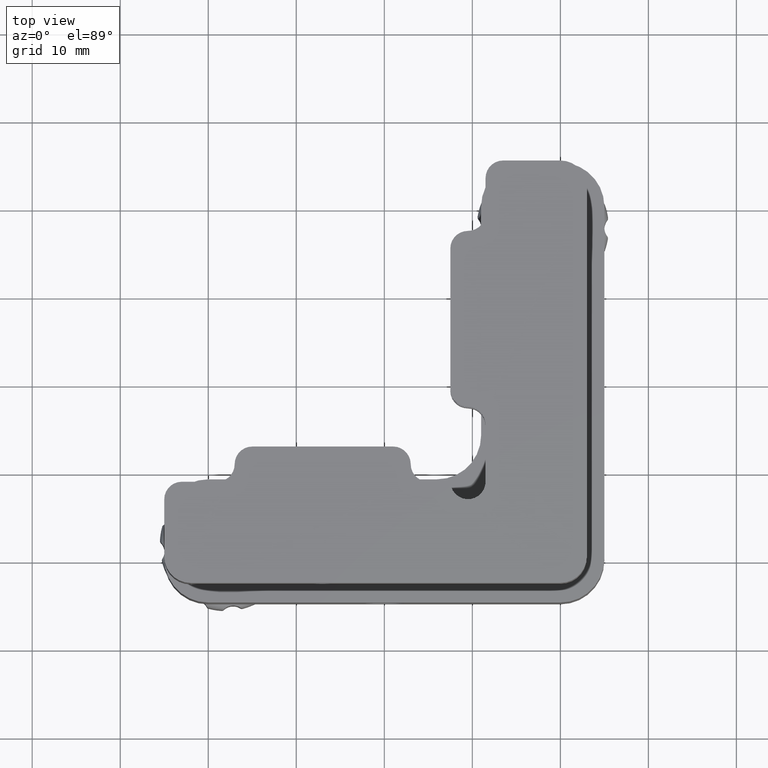
[diagram: clean part render]
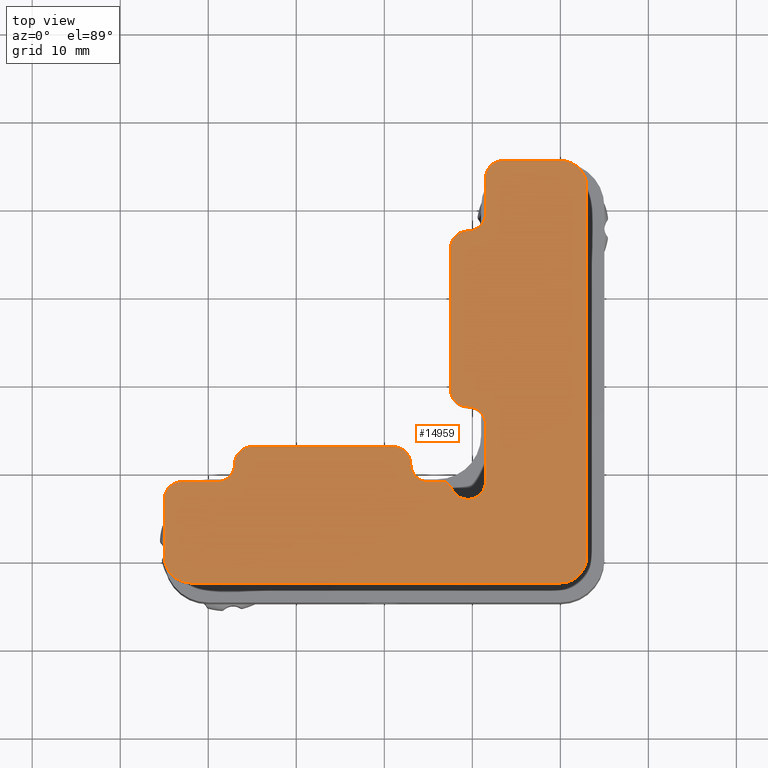
[diagram: same view with one face highlighted and labeled with its STEP entity id]
A machine part, top view. The second image highlights one B-rep face of the part: STEP entity #14959.
In plain terms, the highlighted planar face has unit normal (-0, 0, -1).
Its self-contained STEP definition (entity closure, byte-faithful):
#101 = EDGE_CURVE ( 'NONE', #2942, #16243, #3482, .T. ) ;
#159 = VERTEX_POINT ( 'NONE', #864 ) ;
#206 = DIRECTION ( 'NONE',  ( 0.000000000000000000, -1.000000000000000000, 0.000000000000000000 ) ) ;
#209 = DIRECTION ( 'NONE',  ( 0.000000000000000000, 0.000000000000000000, -1.000000000000000000 ) ) ;
#234 = CARTESIAN_POINT ( 'NONE',  ( -21.99999999999999645, 22.00000000000000711, 10.00000000000000000 ) ) ;
#340 = DIRECTION ( 'NONE',  ( 0.000000000000000000, 0.000000000000000000, -1.000000000000000000 ) ) ;
#347 = CARTESIAN_POINT ( 'NONE',  ( 23.00000000000000000, 22.00000000000000000, 10.00000000000000000 ) ) ;
#433 = DIRECTION ( 'NONE',  ( 0.000000000000000000, 0.000000000000000000, -1.000000000000000000 ) ) ;
#454 = VERTEX_POINT ( 'NONE', #5663 ) ;
#521 = CARTESIAN_POINT ( 'NONE',  ( -19.00000000000000711, -9.499999999999989342, 10.00000000000000000 ) ) ;
#538 = CARTESIAN_POINT ( 'NONE',  ( 7.588562172233864089, -12.08856217223386409, 10.00000000000000178 ) ) ;
#563 = DIRECTION ( 'NONE',  ( 0.000000000000000000, -1.000000000000000000, 0.000000000000000000 ) ) ;
#784 = EDGE_CURVE ( 'NONE', #16913, #3377, #9316, .T. ) ;
#828 = DIRECTION ( 'NONE',  ( -0.000000000000000000, -0.000000000000000000, 1.000000000000000000 ) ) ;
#864 = CARTESIAN_POINT ( 'NONE',  ( 23.00000000000000000, 22.00000000000000000, 10.00000000000000000 ) ) ;
#1080 = CIRCLE ( 'NONE', #8924, 2.000000000000000000 ) ;
#1246 = CARTESIAN_POINT ( 'NONE',  ( 19.99999999999999289, -23.00000000000000000, 10.00000000000000000 ) ) ;
#1298 = ORIENTED_EDGE ( 'NONE', *, *, #7707, .F. ) ;
#1455 = CARTESIAN_POINT ( 'NONE',  ( 20.00000000000000355, 22.00000000000000000, 10.00000000000000000 ) ) ;
#1491 = CARTESIAN_POINT ( 'NONE',  ( 6.999999999999995559, -11.49999999999999467, 10.00000000000000000 ) ) ;
#1507 = EDGE_CURVE ( 'NONE', #2146, #16913, #4094, .T. ) ;
#1552 = FACE_OUTER_BOUND ( 'NONE', #15891, .T. ) ;
#1553 = EDGE_CURVE ( 'NONE', #15966, #2146, #14475, .T. ) ;
#1633 = VERTEX_POINT ( 'NONE', #15735 ) ;
#1683 = AXIS2_PLACEMENT_3D ( 'NONE', #15241, #209, #13907 ) ;
#1788 = VERTEX_POINT ( 'NONE', #11671 ) ;
#1854 = CARTESIAN_POINT ( 'NONE',  ( 0.9999999999999978906, -9.499999999999996447, 10.00000000000000000 ) ) ;
#2146 = VERTEX_POINT ( 'NONE', #2415 ) ;
#2154 = VECTOR ( 'NONE', #5506, 1000.000000000000000 ) ;
#2166 = AXIS2_PLACEMENT_3D ( 'NONE', #5822, #828, #563 ) ;
#2169 = VECTOR ( 'NONE', #3923, 1000.000000000000000 ) ;
#2399 = CARTESIAN_POINT ( 'NONE',  ( -25.00000000000000711, -13.49999999999997513, 10.00000000000000000 ) ) ;
#2415 = CARTESIAN_POINT ( 'NONE',  ( 2.999999999999997780, -9.499999999999996447, 10.00000000000000000 ) ) ;
#2491 = CARTESIAN_POINT ( 'NONE',  ( 7.499999999999996447, -0.9999999999999956701, 10.00000000000000000 ) ) ;
#2659 = CARTESIAN_POINT ( 'NONE',  ( -19.00000000000000711, -11.49999999999999289, 10.00000000000000000 ) ) ;
#2676 = CARTESIAN_POINT ( 'NONE',  ( 22.99999999999998934, -20.00000000000000355, 10.00000000000000000 ) ) ;
#2713 = ORIENTED_EDGE ( 'NONE', *, *, #11229, .T. ) ;
#2854 = CARTESIAN_POINT ( 'NONE',  ( 1.000000000000000000, -7.499999999999995559, 10.00000000000000000 ) ) ;
#2918 = DIRECTION ( 'NONE',  ( 0.000000000000000000, -1.000000000000000000, 0.000000000000000000 ) ) ;
#2942 = VERTEX_POINT ( 'NONE', #538 ) ;
#2985 = CARTESIAN_POINT ( 'NONE',  ( 4.999999999999998224, -9.499999999999996447, 10.00000000000000000 ) ) ;
#3024 = AXIS2_PLACEMENT_3D ( 'NONE', #12725, #7428, #4722 ) ;
#3071 = AXIS2_PLACEMENT_3D ( 'NONE', #4909, #9208, #11853 ) ;
#3304 = CIRCLE ( 'NONE', #13411, 2.999999999999995559 ) ;
#3305 = ORIENTED_EDGE ( 'NONE', *, *, #13263, .F. ) ;
#3350 = CIRCLE ( 'NONE', #1683, 2.000000000000000000 ) ;
#3377 = VERTEX_POINT ( 'NONE', #13180 ) ;
#3458 = ORIENTED_EDGE ( 'NONE', *, *, #3969, .T. ) ;
#3482 = LINE ( 'NONE', #3569, #15651 ) ;
#3569 = CARTESIAN_POINT ( 'NONE',  ( 6.999999999999998224, -11.49999999999999645, 10.00000000000000000 ) ) ;
#3646 = EDGE_CURVE ( 'NONE', #454, #159, #14491, .T. ) ;
#3702 = VECTOR ( 'NONE', #10370, 1000.000000000000000 ) ;
#3729 = CIRCLE ( 'NONE', #10452, 1.999999999999998224 ) ;
#3800 = CARTESIAN_POINT ( 'NONE',  ( 5.499999999999994671, -7.499999999999997335, 10.00000000000000000 ) ) ;
#3803 = ORIENTED_EDGE ( 'NONE', *, *, #101, .T. ) ;
#3819 = CARTESIAN_POINT ( 'NONE',  ( -22.00000000000001066, -19.99999999999999645, 10.00000000000000000 ) ) ;
#3823 = DIRECTION ( 'NONE',  ( 0.000000000000000000, -1.000000000000000000, 0.000000000000000000 ) ) ;
#3875 = ORIENTED_EDGE ( 'NONE', *, *, #10333, .F. ) ;
#3923 = DIRECTION ( 'NONE',  ( -1.000000000000000000, 2.220446049250312834E-16, 0.000000000000000000 ) ) ;
#3942 = LINE ( 'NONE', #15994, #2154 ) ;
#3969 = EDGE_CURVE ( 'NONE', #14398, #15684, #11981, .T. ) ;
#4045 = VERTEX_POINT ( 'NONE', #5803 ) ;
#4090 = CARTESIAN_POINT ( 'NONE',  ( 11.49999999999999467, -2.553512956637858465E-15, 10.00000000000000000 ) ) ;
#4094 = CIRCLE ( 'NONE', #9701, 2.000000000000000000 ) ;
#4127 = DIRECTION ( 'NONE',  ( -2.220446049250312834E-16, -1.000000000000000000, 0.000000000000000000 ) ) ;
#4184 = LINE ( 'NONE', #15974, #2169 ) ;
#4422 = DIRECTION ( 'NONE',  ( 1.000000000000000000, -3.046504847334506466E-16, 0.000000000000000000 ) ) ;
#4550 = DIRECTION ( 'NONE',  ( 0.000000000000000000, -1.000000000000000000, 0.000000000000000000 ) ) ;
#4633 = EDGE_CURVE ( 'NONE', #3377, #16104, #15937, .T. ) ;
#4722 = DIRECTION ( 'NONE',  ( 0.000000000000000000, -1.000000000000000000, 0.000000000000000000 ) ) ;
#4909 = CARTESIAN_POINT ( 'NONE',  ( 9.499999999999996447, -11.49999999999999645, 10.00000000000000178 ) ) ;
#4980 = AXIS2_PLACEMENT_3D ( 'NONE', #8427, #8163, #16544 ) ;
#5001 = VECTOR ( 'NONE', #8170, 1000.000000000000000 ) ;
#5062 = VERTEX_POINT ( 'NONE', #12782 ) ;
#5069 = CARTESIAN_POINT ( 'NONE',  ( -22.00000000000001066, -22.99999999999999645, 10.00000000000000000 ) ) ;
#5161 = ORIENTED_EDGE ( 'NONE', *, *, #14515, .T. ) ;
#5186 = ORIENTED_EDGE ( 'NONE', *, *, #4633, .T. ) ;
#5256 = ORIENTED_EDGE ( 'NONE', *, *, #15438, .F. ) ;
#5506 = DIRECTION ( 'NONE',  ( -2.220446049250312834E-16, -1.000000000000000000, 0.000000000000000000 ) ) ;
#5521 = VERTEX_POINT ( 'NONE', #12596 ) ;
#5523 = LINE ( 'NONE', #347, #12044 ) ;
#5587 = EDGE_CURVE ( 'NONE', #4045, #14274, #8869, .T. ) ;
#5663 = CARTESIAN_POINT ( 'NONE',  ( 20.00000000000000711, 24.99999999999999289, 10.00000000000000000 ) ) ;
#5754 = VERTEX_POINT ( 'NONE', #6578 ) ;
#5788 = DIRECTION ( 'NONE',  ( -4.336808689942017736E-16, -1.000000000000000000, 0.000000000000000000 ) ) ;
#5803 = CARTESIAN_POINT ( 'NONE',  ( -23.00000000000000711, -11.49999999999998757, 10.00000000000000000 ) ) ;
#5822 = CARTESIAN_POINT ( 'NONE',  ( -23.00000000000000711, -13.49999999999998757, 10.00000000000000000 ) ) ;
#5998 = ORIENTED_EDGE ( 'NONE', *, *, #16061, .F. ) ;
#6017 = VERTEX_POINT ( 'NONE', #16177 ) ;
#6407 = CARTESIAN_POINT ( 'NONE',  ( 11.49999999999999112, -5.047177953354517086E-15, 10.00000000000000000 ) ) ;
#6447 = CIRCLE ( 'NONE', #12055, 2.999999999999995559 ) ;
#6578 = CARTESIAN_POINT ( 'NONE',  ( 9.500000000000000000, 17.00000000000000000, 10.00000000000000000 ) ) ;
#6921 = DIRECTION ( 'NONE',  ( -2.168404344971008868E-16, -1.000000000000000000, 0.000000000000000000 ) ) ;
#6952 = CARTESIAN_POINT ( 'NONE',  ( 7.500000000000000000, 15.00000000000000711, 10.00000000000000000 ) ) ;
#6960 = CARTESIAN_POINT ( 'NONE',  ( 9.500000000000000000, 15.00000000000000355, 10.00000000000000000 ) ) ;
#7007 = EDGE_CURVE ( 'NONE', #4045, #11841, #8296, .T. ) ;
#7041 = DIRECTION ( 'NONE',  ( 0.000000000000000000, -1.000000000000000000, 0.000000000000000000 ) ) ;
#7178 = DIRECTION ( 'NONE',  ( -0.000000000000000000, -0.000000000000000000, 1.000000000000000000 ) ) ;
#7428 = DIRECTION ( 'NONE',  ( -0.000000000000000000, -0.000000000000000000, 1.000000000000000000 ) ) ;
#7592 = ORIENTED_EDGE ( 'NONE', *, *, #12285, .T. ) ;
#7693 = ORIENTED_EDGE ( 'NONE', *, *, #784, .T. ) ;
#7707 = EDGE_CURVE ( 'NONE', #5521, #1788, #11193, .T. ) ;
#7758 = AXIS2_PLACEMENT_3D ( 'NONE', #1455, #13486, #3823 ) ;
#7820 = VERTEX_POINT ( 'NONE', #5069 ) ;
#7948 = EDGE_CURVE ( 'NONE', #6017, #5062, #11908, .T. ) ;
#8127 = DIRECTION ( 'NONE',  ( 1.000000000000000000, -8.725659084163335741E-16, -0.000000000000000000 ) ) ;
#8163 = DIRECTION ( 'NONE',  ( -0.000000000000000000, -0.000000000000000000, 1.000000000000000000 ) ) ;
#8170 = DIRECTION ( 'NONE',  ( -1.000000000000000000, 3.357969640054776903E-16, 0.000000000000000000 ) ) ;
#8296 = LINE ( 'NONE', #12446, #16648 ) ;
#8321 = VECTOR ( 'NONE', #10631, 1000.000000000000000 ) ;
#8386 = DIRECTION ( 'NONE',  ( -0.000000000000000000, 0.000000000000000000, -1.000000000000000000 ) ) ;
#8427 = CARTESIAN_POINT ( 'NONE',  ( 9.499999999999996447, -1.000000000000003109, 10.00000000000000000 ) ) ;
#8869 = CIRCLE ( 'NONE', #2166, 2.000000000000000000 ) ;
#8924 = AXIS2_PLACEMENT_3D ( 'NONE', #521, #16178, #4550 ) ;
#8937 = VERTEX_POINT ( 'NONE', #12047 ) ;
#9208 = DIRECTION ( 'NONE',  ( 0.000000000000000000, 0.000000000000000000, 1.000000000000000000 ) ) ;
#9216 = CIRCLE ( 'NONE', #3071, 1.999999999999988010 ) ;
#9316 = LINE ( 'NONE', #3800, #5001 ) ;
#9403 = CARTESIAN_POINT ( 'NONE',  ( 19.99999999999999289, -20.00000000000000355, 10.00000000000000000 ) ) ;
#9426 = DIRECTION ( 'NONE',  ( 2.220446049250312588E-16, 1.000000000000000000, 0.000000000000000000 ) ) ;
#9577 = CARTESIAN_POINT ( 'NONE',  ( 13.50000000000000178, 22.99999999999999645, 10.00000000000000000 ) ) ;
#9701 = AXIS2_PLACEMENT_3D ( 'NONE', #1854, #7178, #6921 ) ;
#9731 = ORIENTED_EDGE ( 'NONE', *, *, #1553, .T. ) ;
#9756 = EDGE_CURVE ( 'NONE', #7820, #8937, #6447, .T. ) ;
#9860 = LINE ( 'NONE', #10922, #14560 ) ;
#10045 = ORIENTED_EDGE ( 'NONE', *, *, #16350, .T. ) ;
#10046 = AXIS2_PLACEMENT_3D ( 'NONE', #234, #8386, #13929 ) ;
#10333 = EDGE_CURVE ( 'NONE', #159, #10683, #5523, .T. ) ;
#10370 = DIRECTION ( 'NONE',  ( 4.388850394221322442E-16, 1.000000000000000000, 0.000000000000000000 ) ) ;
#10452 = AXIS2_PLACEMENT_3D ( 'NONE', #9577, #14960, #2918 ) ;
#10631 = DIRECTION ( 'NONE',  ( 3.046504847334506466E-16, 1.000000000000000000, 0.000000000000000000 ) ) ;
#10683 = VERTEX_POINT ( 'NONE', #2676 ) ;
#10733 = EDGE_CURVE ( 'NONE', #5754, #15513, #11951, .T. ) ;
#10897 = VECTOR ( 'NONE', #4422, 1000.000000000000000 ) ;
#10922 = CARTESIAN_POINT ( 'NONE',  ( 6.653865492777504512E-15, -11.50000000000000000, 10.00000000000000000 ) ) ;
#11193 = LINE ( 'NONE', #6407, #3702 ) ;
#11229 = EDGE_CURVE ( 'NONE', #1633, #1788, #3729, .T. ) ;
#11539 = ORIENTED_EDGE ( 'NONE', *, *, #7948, .F. ) ;
#11671 = CARTESIAN_POINT ( 'NONE',  ( 11.50000000000000178, 22.99999999999999645, 10.00000000000000000 ) ) ;
#11759 = AXIS2_PLACEMENT_3D ( 'NONE', #13694, #340, #16609 ) ;
#11841 = VERTEX_POINT ( 'NONE', #2659 ) ;
#11853 = DIRECTION ( 'NONE',  ( 0.000000000000000000, 1.000000000000000000, 0.000000000000000000 ) ) ;
#11864 = CARTESIAN_POINT ( 'NONE',  ( -24.99999999999999645, 22.00000000000001066, 10.00000000000000000 ) ) ;
#11908 = LINE ( 'NONE', #4090, #16914 ) ;
#11923 = ORIENTED_EDGE ( 'NONE', *, *, #3646, .F. ) ;
#11951 = CIRCLE ( 'NONE', #14202, 2.000000000000000000 ) ;
#11981 = CIRCLE ( 'NONE', #4980, 2.000000000000000000 ) ;
#12044 = VECTOR ( 'NONE', #4127, 1000.000000000000000 ) ;
#12047 = CARTESIAN_POINT ( 'NONE',  ( -25.00000000000000711, -19.99999999999999289, 10.00000000000000000 ) ) ;
#12055 = AXIS2_PLACEMENT_3D ( 'NONE', #3819, #14546, #16852 ) ;
#12285 = EDGE_CURVE ( 'NONE', #15513, #14398, #3942, .T. ) ;
#12415 = DIRECTION ( 'NONE',  ( 1.000000000000000000, 5.785969993719567940E-16, 0.000000000000000000 ) ) ;
#12437 = PLANE ( 'NONE',  #10046 ) ;
#12446 = CARTESIAN_POINT ( 'NONE',  ( -1.003450794678784222E-14, -11.50000000000000888, 10.00000000000000000 ) ) ;
#12596 = CARTESIAN_POINT ( 'NONE',  ( 11.49999999999999822, 19.00000000000000000, 10.00000000000000000 ) ) ;
#12666 = CARTESIAN_POINT ( 'NONE',  ( 4.999999999999997335, -11.49999999999999822, 10.00000000000000000 ) ) ;
#12725 = CARTESIAN_POINT ( 'NONE',  ( -15.00000000000000355, -9.499999999999991118, 10.00000000000000000 ) ) ;
#12782 = CARTESIAN_POINT ( 'NONE',  ( 11.49999999999999289, -5.000000000000001776, 10.00000000000000000 ) ) ;
#13008 = EDGE_CURVE ( 'NONE', #15789, #7820, #4184, .T. ) ;
#13075 = AXIS2_PLACEMENT_3D ( 'NONE', #2985, #433, #5788 ) ;
#13180 = CARTESIAN_POINT ( 'NONE',  ( -14.99999999999999645, -7.499999999999990230, 10.00000000000000000 ) ) ;
#13263 = EDGE_CURVE ( 'NONE', #8937, #14274, #17169, .T. ) ;
#13411 = AXIS2_PLACEMENT_3D ( 'NONE', #9403, #13815, #206 ) ;
#13486 = DIRECTION ( 'NONE',  ( 0.000000000000000000, 0.000000000000000000, -1.000000000000000000 ) ) ;
#13694 = CARTESIAN_POINT ( 'NONE',  ( 9.500000000000000000, 19.00000000000000000, 10.00000000000000000 ) ) ;
#13737 = LINE ( 'NONE', #13816, #10897 ) ;
#13743 = DIRECTION ( 'NONE',  ( -0.000000000000000000, -0.000000000000000000, 1.000000000000000000 ) ) ;
#13779 = ORIENTED_EDGE ( 'NONE', *, *, #1507, .T. ) ;
#13815 = DIRECTION ( 'NONE',  ( 0.000000000000000000, 0.000000000000000000, -1.000000000000000000 ) ) ;
#13816 = CARTESIAN_POINT ( 'NONE',  ( 20.00000000000000711, 24.99999999999999289, 10.00000000000000000 ) ) ;
#13877 = EDGE_CURVE ( 'NONE', #10683, #15789, #3304, .T. ) ;
#13907 = DIRECTION ( 'NONE',  ( 0.000000000000000000, -1.000000000000000000, 0.000000000000000000 ) ) ;
#13929 = DIRECTION ( 'NONE',  ( -2.220446049250312588E-16, -1.000000000000000000, 0.000000000000000000 ) ) ;
#14193 = DIRECTION ( 'NONE',  ( -0.7071067811865474617, 0.7071067811865476838, 0.000000000000000000 ) ) ;
#14202 = AXIS2_PLACEMENT_3D ( 'NONE', #6960, #13743, #7041 ) ;
#14274 = VERTEX_POINT ( 'NONE', #2399 ) ;
#14398 = VERTEX_POINT ( 'NONE', #2491 ) ;
#14422 = ORIENTED_EDGE ( 'NONE', *, *, #5587, .T. ) ;
#14475 = CIRCLE ( 'NONE', #13075, 2.000000000000000000 ) ;
#14491 = CIRCLE ( 'NONE', #7758, 2.999999999999995559 ) ;
#14515 = EDGE_CURVE ( 'NONE', #16104, #11841, #1080, .T. ) ;
#14546 = DIRECTION ( 'NONE',  ( 0.000000000000000000, 0.000000000000000000, -1.000000000000000000 ) ) ;
#14560 = VECTOR ( 'NONE', #12415, 1000.000000000000000 ) ;
#14901 = ORIENTED_EDGE ( 'NONE', *, *, #16858, .T. ) ;
#14959 = ADVANCED_FACE ( 'NONE', ( #1552 ), #12437, .F. ) ;
#14960 = DIRECTION ( 'NONE',  ( -0.000000000000000000, -0.000000000000000000, 1.000000000000000000 ) ) ;
#15017 = ORIENTED_EDGE ( 'NONE', *, *, #13877, .F. ) ;
#15052 = ORIENTED_EDGE ( 'NONE', *, *, #13008, .F. ) ;
#15241 = CARTESIAN_POINT ( 'NONE',  ( 9.499999999999992895, -5.000000000000000888, 10.00000000000000000 ) ) ;
#15438 = EDGE_CURVE ( 'NONE', #15966, #16243, #9860, .T. ) ;
#15513 = VERTEX_POINT ( 'NONE', #6952 ) ;
#15529 = EDGE_CURVE ( 'NONE', #1633, #454, #13737, .T. ) ;
#15651 = VECTOR ( 'NONE', #14193, 1000.000000000000000 ) ;
#15684 = VERTEX_POINT ( 'NONE', #16909 ) ;
#15735 = CARTESIAN_POINT ( 'NONE',  ( 13.50000000000000178, 24.99999999999999289, 10.00000000000000000 ) ) ;
#15739 = CARTESIAN_POINT ( 'NONE',  ( -17.00000000000000355, -9.499999999999991118, 10.00000000000000000 ) ) ;
#15789 = VERTEX_POINT ( 'NONE', #1246 ) ;
#15891 = EDGE_LOOP ( 'NONE', ( #5998, #3803, #5256, #9731, #13779, #7693, #5186, #5161, #16835, #14422, #3305, #16588, #15052, #15017, #3875, #11923, #16958, #2713, #1298, #10045, #17272, #7592, #3458, #14901, #11539 ) ) ;
#15937 = CIRCLE ( 'NONE', #3024, 2.000000000000000000 ) ;
#15966 = VERTEX_POINT ( 'NONE', #12666 ) ;
#15974 = CARTESIAN_POINT ( 'NONE',  ( 19.99999999999999289, -23.00000000000000000, 10.00000000000000000 ) ) ;
#15994 = CARTESIAN_POINT ( 'NONE',  ( 7.500000000000001776, 25.00000000000000000, 10.00000000000000000 ) ) ;
#16061 = EDGE_CURVE ( 'NONE', #2942, #6017, #9216, .T. ) ;
#16104 = VERTEX_POINT ( 'NONE', #15739 ) ;
#16177 = CARTESIAN_POINT ( 'NONE',  ( 11.49999999999999289, -11.49999999999999822, 10.00000000000000000 ) ) ;
#16178 = DIRECTION ( 'NONE',  ( 0.000000000000000000, 0.000000000000000000, -1.000000000000000000 ) ) ;
#16243 = VERTEX_POINT ( 'NONE', #1491 ) ;
#16350 = EDGE_CURVE ( 'NONE', #5521, #5754, #17396, .T. ) ;
#16544 = DIRECTION ( 'NONE',  ( 0.000000000000000000, -1.000000000000000000, 0.000000000000000000 ) ) ;
#16588 = ORIENTED_EDGE ( 'NONE', *, *, #9756, .F. ) ;
#16609 = DIRECTION ( 'NONE',  ( 0.000000000000000000, -1.000000000000000000, 0.000000000000000000 ) ) ;
#16648 = VECTOR ( 'NONE', #8127, 1000.000000000000000 ) ;
#16835 = ORIENTED_EDGE ( 'NONE', *, *, #7007, .F. ) ;
#16852 = DIRECTION ( 'NONE',  ( 0.000000000000000000, -1.000000000000000000, 0.000000000000000000 ) ) ;
#16858 = EDGE_CURVE ( 'NONE', #15684, #5062, #3350, .T. ) ;
#16909 = CARTESIAN_POINT ( 'NONE',  ( 9.499999999999996447, -3.000000000000001332, 10.00000000000000000 ) ) ;
#16913 = VERTEX_POINT ( 'NONE', #2854 ) ;
#16914 = VECTOR ( 'NONE', #9426, 1000.000000000000000 ) ;
#16958 = ORIENTED_EDGE ( 'NONE', *, *, #15529, .F. ) ;
#17169 = LINE ( 'NONE', #11864, #8321 ) ;
#17272 = ORIENTED_EDGE ( 'NONE', *, *, #10733, .T. ) ;
#17396 = CIRCLE ( 'NONE', #11759, 1.999999999999998224 ) ;